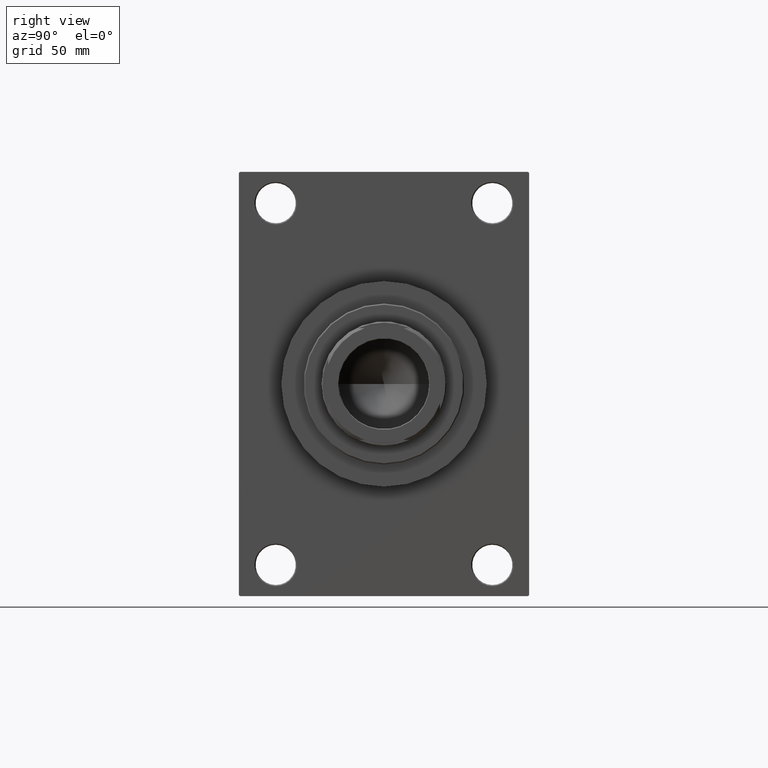
[diagram: clean part render]
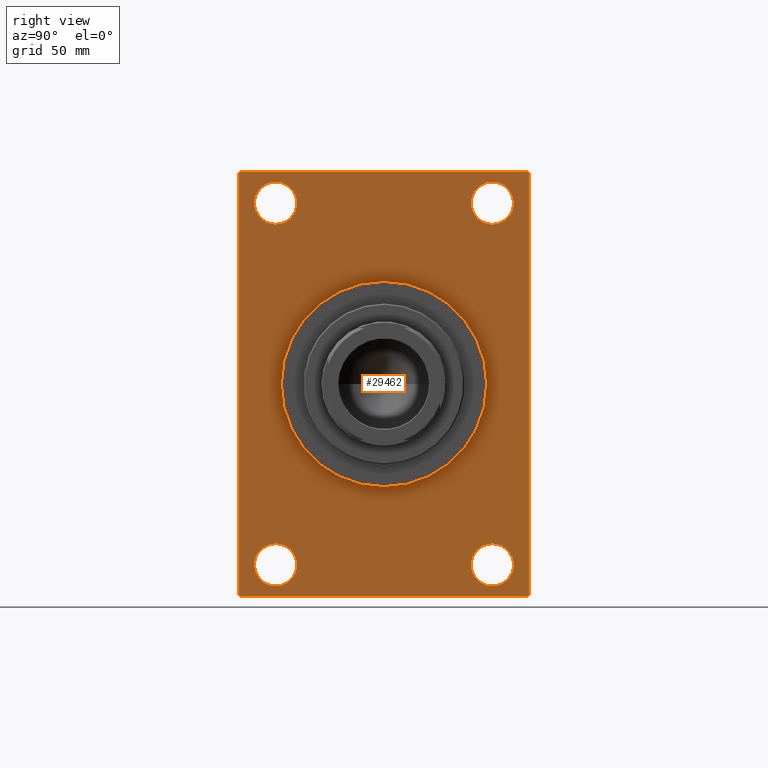
[diagram: same view with one face highlighted and labeled with its STEP entity id]
A machine part, right view. The second image highlights one B-rep face of the part: STEP entity #29462.
In plain terms, the highlighted planar face has unit normal (-1, 0, 0).
Its self-contained STEP definition (entity closure, byte-faithful):
#773 = EDGE_LOOP ( 'NONE', ( #46486, #25276 ) ) ;
#2059 = VERTEX_POINT ( 'NONE', #8903 ) ;
#2663 = CARTESIAN_POINT ( 'NONE',  ( 156.0000000000000000, 64.99999999999998579, -95.00000000000001421 ) ) ;
#3222 = VERTEX_POINT ( 'NONE', #10526 ) ;
#4257 = LINE ( 'NONE', #34428, #11040 ) ;
#4260 = DIRECTION ( 'NONE',  ( 0.000000000000000000, 0.000000000000000000, 1.000000000000000000 ) ) ;
#4340 = EDGE_CURVE ( 'NONE', #30915, #23075, #46495, .T. ) ;
#4407 = VERTEX_POINT ( 'NONE', #23884 ) ;
#4699 = CARTESIAN_POINT ( 'NONE',  ( 156.0000000000000000, -64.49999999999998579, -95.00000000000002842 ) ) ;
#4888 = DIRECTION ( 'NONE',  ( 0.000000000000000000, 0.000000000000000000, 1.000000000000000000 ) ) ;
#5164 = AXIS2_PLACEMENT_3D ( 'NONE', #26825, #41547, #38391 ) ;
#5978 = ORIENTED_EDGE ( 'NONE', *, *, #12804, .T. ) ;
#6284 = DIRECTION ( 'NONE',  ( 0.000000000000000000, 0.000000000000000000, -1.000000000000000000 ) ) ;
#6289 = ORIENTED_EDGE ( 'NONE', *, *, #21859, .T. ) ;
#6615 = PLANE ( 'NONE',  #25943 ) ;
#6645 = CIRCLE ( 'NONE', #19798, 9.499999999999925393 ) ;
#7019 = ORIENTED_EDGE ( 'NONE', *, *, #28655, .F. ) ;
#7456 = CARTESIAN_POINT ( 'NONE',  ( 156.0000000000000000, -48.50000000000000000, 81.00000000000000000 ) ) ;
#8120 = CARTESIAN_POINT ( 'NONE',  ( 156.0000000000000000, 48.50000000000000711, 81.00000000000000000 ) ) ;
#8363 = DIRECTION ( 'NONE',  ( 0.000000000000000000, -1.000000000000000000, 0.000000000000000000 ) ) ;
#8366 = DIRECTION ( 'NONE',  ( -1.000000000000000000, 0.000000000000000000, -0.000000000000000000 ) ) ;
#8903 = CARTESIAN_POINT ( 'NONE',  ( 156.0000000000000000, 5.633375276077824704E-15, -46.00000000000000000 ) ) ;
#8961 = AXIS2_PLACEMENT_3D ( 'NONE', #8120, #8366, #4260 ) ;
#9176 = DIRECTION ( 'NONE',  ( 0.000000000000000000, 7.304098846218135653E-17, -1.000000000000000000 ) ) ;
#9337 = LINE ( 'NONE', #28409, #31608 ) ;
#9656 = VERTEX_POINT ( 'NONE', #18675 ) ;
#10182 = DIRECTION ( 'NONE',  ( 0.000000000000000000, 0.000000000000000000, 1.000000000000000000 ) ) ;
#10315 = AXIS2_PLACEMENT_3D ( 'NONE', #39144, #46612, #6284 ) ;
#10483 = DIRECTION ( 'NONE',  ( -0.000000000000000000, 0.000000000000000000, 1.000000000000000000 ) ) ;
#10526 = CARTESIAN_POINT ( 'NONE',  ( 156.0000000000000000, 0.000000000000000000, 46.00000000000000000 ) ) ;
#10588 = CARTESIAN_POINT ( 'NONE',  ( 156.0000000000000000, 48.50000000000000711, -81.00000000000001421 ) ) ;
#11040 = VECTOR ( 'NONE', #8363, 1000.000000000000000 ) ;
#11043 = DIRECTION ( 'NONE',  ( 1.000000000000000000, 0.000000000000000000, 0.000000000000000000 ) ) ;
#11144 = CIRCLE ( 'NONE', #34309, 9.499999999999925393 ) ;
#11269 = LINE ( 'NONE', #14886, #35449 ) ;
#11937 = EDGE_CURVE ( 'NONE', #4407, #35752, #6645, .T. ) ;
#11954 = LINE ( 'NONE', #4699, #38612 ) ;
#12170 = DIRECTION ( 'NONE',  ( 0.000000000000000000, 0.000000000000000000, 1.000000000000000000 ) ) ;
#12804 = EDGE_CURVE ( 'NONE', #35752, #4407, #45260, .T. ) ;
#12901 = AXIS2_PLACEMENT_3D ( 'NONE', #45081, #11043, #14669 ) ;
#13218 = CARTESIAN_POINT ( 'NONE',  ( 156.0000000000000000, 48.50000000000000711, 71.50000000000007105 ) ) ;
#13285 = EDGE_CURVE ( 'NONE', #23075, #30915, #15968, .T. ) ;
#13326 = DIRECTION ( 'NONE',  ( -1.000000000000000000, 0.000000000000000000, -0.000000000000000000 ) ) ;
#14005 = ORIENTED_EDGE ( 'NONE', *, *, #22619, .T. ) ;
#14109 = FACE_BOUND ( 'NONE', #27224, .T. ) ;
#14669 = DIRECTION ( 'NONE',  ( 0.000000000000000000, 0.000000000000000000, -1.000000000000000000 ) ) ;
#14698 = EDGE_CURVE ( 'NONE', #41223, #29928, #24981, .T. ) ;
#14711 = DIRECTION ( 'NONE',  ( 0.000000000000000000, 0.000000000000000000, 1.000000000000000000 ) ) ;
#14886 = CARTESIAN_POINT ( 'NONE',  ( 156.0000000000000000, -65.00000000000001421, 94.99999999999997158 ) ) ;
#15020 = EDGE_LOOP ( 'NONE', ( #16439, #6289 ) ) ;
#15968 = CIRCLE ( 'NONE', #35991, 9.499999999999925393 ) ;
#15996 = ORIENTED_EDGE ( 'NONE', *, *, #23281, .F. ) ;
#16236 = ORIENTED_EDGE ( 'NONE', *, *, #42849, .T. ) ;
#16439 = ORIENTED_EDGE ( 'NONE', *, *, #30197, .T. ) ;
#17500 = FACE_BOUND ( 'NONE', #15020, .T. ) ;
#17971 = DIRECTION ( 'NONE',  ( -1.000000000000000000, 0.000000000000000000, -0.000000000000000000 ) ) ;
#18151 = VERTEX_POINT ( 'NONE', #30183 ) ;
#18299 = CARTESIAN_POINT ( 'NONE',  ( 156.0000000000000000, -48.49999999999999289, -71.50000000000008527 ) ) ;
#18555 = DIRECTION ( 'NONE',  ( -1.000000000000000000, 0.000000000000000000, -0.000000000000000000 ) ) ;
#18675 = CARTESIAN_POINT ( 'NONE',  ( 156.0000000000000000, -64.49999999999998579, -95.00000000000002842 ) ) ;
#19377 = ORIENTED_EDGE ( 'NONE', *, *, #44737, .T. ) ;
#19798 = AXIS2_PLACEMENT_3D ( 'NONE', #41607, #13326, #4888 ) ;
#20366 = CARTESIAN_POINT ( 'NONE',  ( 156.0000000000000000, -64.50000000000002842, 94.99999999999997158 ) ) ;
#20601 = CARTESIAN_POINT ( 'NONE',  ( 156.0000000000000000, 48.50000000000000711, 81.00000000000000000 ) ) ;
#20975 = CARTESIAN_POINT ( 'NONE',  ( 156.0000000000000000, 48.50000000000000711, 90.49999999999992895 ) ) ;
#21158 = ORIENTED_EDGE ( 'NONE', *, *, #42530, .F. ) ;
#21325 = VERTEX_POINT ( 'NONE', #44923 ) ;
#21859 = EDGE_CURVE ( 'NONE', #34734, #39976, #35690, .T. ) ;
#22312 = DIRECTION ( 'NONE',  ( 0.000000000000000000, 0.000000000000000000, 1.000000000000000000 ) ) ;
#22619 = EDGE_CURVE ( 'NONE', #29928, #40594, #4257, .T. ) ;
#22749 = CARTESIAN_POINT ( 'NONE',  ( 156.0000000000000000, -48.50000000000000000, 71.50000000000007105 ) ) ;
#23075 = VERTEX_POINT ( 'NONE', #38771 ) ;
#23281 = EDGE_CURVE ( 'NONE', #3222, #2059, #30389, .T. ) ;
#23884 = CARTESIAN_POINT ( 'NONE',  ( 156.0000000000000000, -48.49999999999999289, -90.49999999999994316 ) ) ;
#23948 = VECTOR ( 'NONE', #29398, 999.9999999999998863 ) ;
#24431 = DIRECTION ( 'NONE',  ( 0.000000000000000000, -1.000000000000000000, -1.067522139062650425E-16 ) ) ;
#24670 = LINE ( 'NONE', #2663, #31647 ) ;
#24981 = LINE ( 'NONE', #29057, #42993 ) ;
#25276 = ORIENTED_EDGE ( 'NONE', *, *, #13285, .T. ) ;
#25335 = DIRECTION ( 'NONE',  ( 0.000000000000000000, 0.000000000000000000, 1.000000000000000000 ) ) ;
#25407 = EDGE_CURVE ( 'NONE', #41112, #25821, #11144, .T. ) ;
#25549 = CARTESIAN_POINT ( 'NONE',  ( 156.0000000000000000, -65.00000000000001421, 94.49999999999994316 ) ) ;
#25687 = DIRECTION ( 'NONE',  ( 0.000000000000000000, -0.7071067811865474617, 0.7071067811865474617 ) ) ;
#25821 = VERTEX_POINT ( 'NONE', #43868 ) ;
#25925 = DIRECTION ( 'NONE',  ( -1.000000000000000000, 0.000000000000000000, -0.000000000000000000 ) ) ;
#25943 = AXIS2_PLACEMENT_3D ( 'NONE', #36324, #17971, #10483 ) ;
#26178 = CIRCLE ( 'NONE', #40819, 9.499999999999925393 ) ;
#26435 = EDGE_LOOP ( 'NONE', ( #38904, #39394 ) ) ;
#26825 = CARTESIAN_POINT ( 'NONE',  ( 156.0000000000000000, -48.49999999999999289, -81.00000000000001421 ) ) ;
#27217 = AXIS2_PLACEMENT_3D ( 'NONE', #20601, #28308, #10182 ) ;
#27224 = EDGE_LOOP ( 'NONE', ( #38608, #5978 ) ) ;
#28308 = DIRECTION ( 'NONE',  ( -1.000000000000000000, 0.000000000000000000, -0.000000000000000000 ) ) ;
#28364 = FACE_BOUND ( 'NONE', #26435, .T. ) ;
#28409 = CARTESIAN_POINT ( 'NONE',  ( 156.0000000000000000, 64.99999999999998579, -94.49999999999997158 ) ) ;
#28655 = EDGE_CURVE ( 'NONE', #41223, #40778, #39116, .T. ) ;
#29023 = CIRCLE ( 'NONE', #8961, 9.499999999999925393 ) ;
#29057 = CARTESIAN_POINT ( 'NONE',  ( 156.0000000000000000, 64.49999999999991473, 94.99999999999997158 ) ) ;
#29060 = CARTESIAN_POINT ( 'NONE',  ( 156.0000000000000000, -48.50000000000000000, 81.00000000000000000 ) ) ;
#29398 = DIRECTION ( 'NONE',  ( -0.000000000000000000, -0.7071067811865180408, -0.7071067811865771047 ) ) ;
#29462 = ADVANCED_FACE ( 'NONE', ( #46708, #14109, #28364, #17500, #47426, #47177 ), #6615, .F. ) ;
#29489 = VERTEX_POINT ( 'NONE', #32939 ) ;
#29928 = VERTEX_POINT ( 'NONE', #39891 ) ;
#30183 = CARTESIAN_POINT ( 'NONE',  ( 156.0000000000000000, -65.00000000000001421, -94.50000000000002842 ) ) ;
#30197 = EDGE_CURVE ( 'NONE', #39976, #34734, #29023, .T. ) ;
#30389 = CIRCLE ( 'NONE', #10315, 46.00000000000000000 ) ;
#30915 = VERTEX_POINT ( 'NONE', #22749 ) ;
#31089 = AXIS2_PLACEMENT_3D ( 'NONE', #7456, #40555, #14711 ) ;
#31276 = ORIENTED_EDGE ( 'NONE', *, *, #43228, .T. ) ;
#31608 = VECTOR ( 'NONE', #39756, 999.9999999999998863 ) ;
#31647 = VECTOR ( 'NONE', #24431, 1000.000000000000000 ) ;
#32939 = CARTESIAN_POINT ( 'NONE',  ( 156.0000000000000000, 64.49999999999992895, -95.00000000000001421 ) ) ;
#33615 = VECTOR ( 'NONE', #9176, 1000.000000000000000 ) ;
#34137 = CARTESIAN_POINT ( 'NONE',  ( 156.0000000000000000, 48.50000000000000711, -81.00000000000001421 ) ) ;
#34309 = AXIS2_PLACEMENT_3D ( 'NONE', #10588, #18555, #25335 ) ;
#34399 = EDGE_LOOP ( 'NONE', ( #36274, #31276, #21158, #19377, #7019, #44239, #14005, #16236 ) ) ;
#34428 = CARTESIAN_POINT ( 'NONE',  ( 156.0000000000000000, 64.99999999999997158, 94.99999999999997158 ) ) ;
#34734 = VERTEX_POINT ( 'NONE', #20975 ) ;
#34935 = EDGE_CURVE ( 'NONE', #2059, #3222, #39138, .T. ) ;
#35449 = VECTOR ( 'NONE', #40497, 1000.000000000000000 ) ;
#35690 = CIRCLE ( 'NONE', #27217, 9.499999999999925393 ) ;
#35752 = VERTEX_POINT ( 'NONE', #18299 ) ;
#35837 = EDGE_LOOP ( 'NONE', ( #15996, #46792 ) ) ;
#35991 = AXIS2_PLACEMENT_3D ( 'NONE', #29060, #25925, #22312 ) ;
#36274 = ORIENTED_EDGE ( 'NONE', *, *, #40897, .T. ) ;
#36324 = CARTESIAN_POINT ( 'NONE',  ( 156.0000000000000000, 0.000000000000000000, 0.000000000000000000 ) ) ;
#36403 = LINE ( 'NONE', #25549, #23948 ) ;
#37549 = DIRECTION ( 'NONE',  ( 0.000000000000000000, 0.7071067811865672237, -0.7071067811865279218 ) ) ;
#38391 = DIRECTION ( 'NONE',  ( 0.000000000000000000, 0.000000000000000000, 1.000000000000000000 ) ) ;
#38593 = CARTESIAN_POINT ( 'NONE',  ( 156.0000000000000000, 64.99999999999998579, -94.49999999999997158 ) ) ;
#38608 = ORIENTED_EDGE ( 'NONE', *, *, #11937, .T. ) ;
#38612 = VECTOR ( 'NONE', #37549, 1000.000000000000000 ) ;
#38638 = CARTESIAN_POINT ( 'NONE',  ( 156.0000000000000000, 64.99999999999997158, 94.99999999999997158 ) ) ;
#38771 = CARTESIAN_POINT ( 'NONE',  ( 156.0000000000000000, -48.50000000000000000, 90.49999999999992895 ) ) ;
#38904 = ORIENTED_EDGE ( 'NONE', *, *, #39421, .T. ) ;
#39116 = LINE ( 'NONE', #38638, #33615 ) ;
#39138 = CIRCLE ( 'NONE', #12901, 46.00000000000000000 ) ;
#39144 = CARTESIAN_POINT ( 'NONE',  ( 156.0000000000000000, 0.000000000000000000, 0.000000000000000000 ) ) ;
#39394 = ORIENTED_EDGE ( 'NONE', *, *, #25407, .T. ) ;
#39421 = EDGE_CURVE ( 'NONE', #25821, #41112, #26178, .T. ) ;
#39756 = DIRECTION ( 'NONE',  ( -0.000000000000000000, 0.7071067811865574537, 0.7071067811865376918 ) ) ;
#39891 = CARTESIAN_POINT ( 'NONE',  ( 156.0000000000000000, 64.49999999999991473, 94.99999999999997158 ) ) ;
#39976 = VERTEX_POINT ( 'NONE', #13218 ) ;
#40497 = DIRECTION ( 'NONE',  ( 0.000000000000000000, 0.000000000000000000, -1.000000000000000000 ) ) ;
#40555 = DIRECTION ( 'NONE',  ( -1.000000000000000000, 0.000000000000000000, -0.000000000000000000 ) ) ;
#40594 = VERTEX_POINT ( 'NONE', #20366 ) ;
#40778 = VERTEX_POINT ( 'NONE', #38593 ) ;
#40819 = AXIS2_PLACEMENT_3D ( 'NONE', #34137, #41855, #12170 ) ;
#40897 = EDGE_CURVE ( 'NONE', #21325, #18151, #11269, .T. ) ;
#41112 = VERTEX_POINT ( 'NONE', #44539 ) ;
#41223 = VERTEX_POINT ( 'NONE', #41861 ) ;
#41547 = DIRECTION ( 'NONE',  ( -1.000000000000000000, 0.000000000000000000, -0.000000000000000000 ) ) ;
#41607 = CARTESIAN_POINT ( 'NONE',  ( 156.0000000000000000, -48.49999999999999289, -81.00000000000001421 ) ) ;
#41855 = DIRECTION ( 'NONE',  ( -1.000000000000000000, 0.000000000000000000, -0.000000000000000000 ) ) ;
#41861 = CARTESIAN_POINT ( 'NONE',  ( 156.0000000000000000, 64.99999999999997158, 94.49999999999991473 ) ) ;
#42530 = EDGE_CURVE ( 'NONE', #29489, #9656, #24670, .T. ) ;
#42849 = EDGE_CURVE ( 'NONE', #40594, #21325, #36403, .T. ) ;
#42993 = VECTOR ( 'NONE', #25687, 1000.000000000000114 ) ;
#43228 = EDGE_CURVE ( 'NONE', #18151, #9656, #11954, .T. ) ;
#43868 = CARTESIAN_POINT ( 'NONE',  ( 156.0000000000000000, 48.50000000000000711, -90.49999999999994316 ) ) ;
#44239 = ORIENTED_EDGE ( 'NONE', *, *, #14698, .T. ) ;
#44539 = CARTESIAN_POINT ( 'NONE',  ( 156.0000000000000000, 48.50000000000000711, -71.50000000000008527 ) ) ;
#44737 = EDGE_CURVE ( 'NONE', #29489, #40778, #9337, .T. ) ;
#44923 = CARTESIAN_POINT ( 'NONE',  ( 156.0000000000000000, -65.00000000000001421, 94.49999999999994316 ) ) ;
#45081 = CARTESIAN_POINT ( 'NONE',  ( 156.0000000000000000, 0.000000000000000000, 0.000000000000000000 ) ) ;
#45260 = CIRCLE ( 'NONE', #5164, 9.499999999999925393 ) ;
#46486 = ORIENTED_EDGE ( 'NONE', *, *, #4340, .T. ) ;
#46495 = CIRCLE ( 'NONE', #31089, 9.499999999999925393 ) ;
#46612 = DIRECTION ( 'NONE',  ( 1.000000000000000000, 0.000000000000000000, 0.000000000000000000 ) ) ;
#46708 = FACE_BOUND ( 'NONE', #773, .T. ) ;
#46792 = ORIENTED_EDGE ( 'NONE', *, *, #34935, .F. ) ;
#47177 = FACE_OUTER_BOUND ( 'NONE', #34399, .T. ) ;
#47426 = FACE_BOUND ( 'NONE', #35837, .T. ) ;